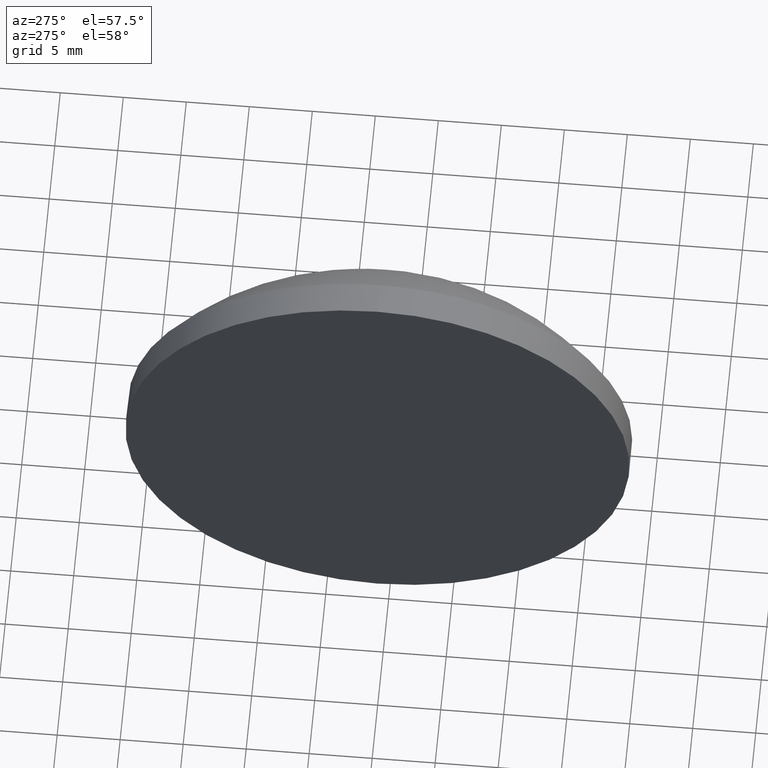
[diagram: clean part render]
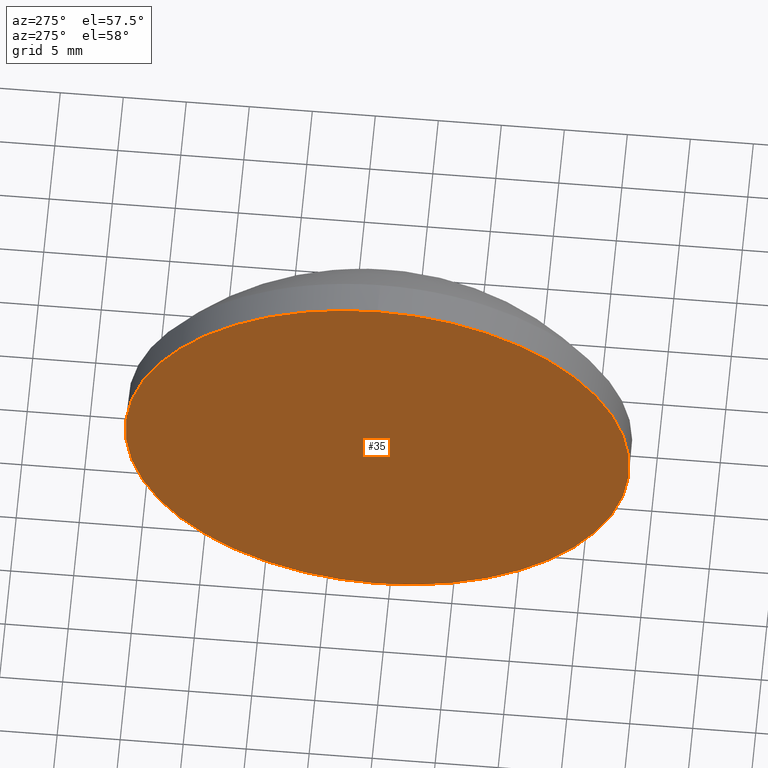
[diagram: same view with one face highlighted and labeled with its STEP entity id]
A machine part, auxiliary view. The second image highlights one B-rep face of the part: STEP entity #35.
In plain terms, the highlighted planar face has unit normal (1, 0, 0).
Its self-contained STEP definition (entity closure, byte-faithful):
#1 = PLANE ( 'NONE',  #162 ) ;
#18 = DIRECTION ( 'NONE',  ( 0.0000000000000000000, 0.0000000000000000000, 1.000000000000000000 ) ) ;
#22 = EDGE_CURVE ( 'NONE', #151, #144, #122, .T. ) ;
#35 = ADVANCED_FACE ( 'NONE', ( #42 ), #1, .F. ) ;
#36 = CARTESIAN_POINT ( 'NONE',  ( 440.7977319271096800, 15.96846071978552600, 19.99999999999999600 ) ) ;
#39 = ORIENTED_EDGE ( 'NONE', *, *, #83, .T. ) ;
#42 = FACE_OUTER_BOUND ( 'NONE', #172, .T. ) ;
#44 = CARTESIAN_POINT ( 'NONE',  ( 440.7977319271096800, 15.96846071978552600, 0.0000000000000000000 ) ) ;
#45 = CARTESIAN_POINT ( 'NONE',  ( 440.7977319271096800, 15.96846071978552600, 0.0000000000000000000 ) ) ;
#49 = AXIS2_PLACEMENT_3D ( 'NONE', #45, #62, #18 ) ;
#58 = ORIENTED_EDGE ( 'NONE', *, *, #22, .T. ) ;
#62 = DIRECTION ( 'NONE',  ( -1.000000000000000000, -0.0000000000000000000, -0.0000000000000000000 ) ) ;
#83 = EDGE_CURVE ( 'NONE', #144, #151, #164, .T. ) ;
#86 = DIRECTION ( 'NONE',  ( 0.0000000000000000000, 0.0000000000000000000, 1.000000000000000000 ) ) ;
#100 = AXIS2_PLACEMENT_3D ( 'NONE', #145, #160, #86 ) ;
#101 = DIRECTION ( 'NONE',  ( 1.000000000000000000, 0.0000000000000000000, 0.0000000000000000000 ) ) ;
#105 = DIRECTION ( 'NONE',  ( 0.0000000000000000000, 0.0000000000000000000, -1.000000000000000000 ) ) ;
#122 = CIRCLE ( 'NONE', #100, 19.99999999999999600 ) ;
#144 = VERTEX_POINT ( 'NONE', #36 ) ;
#145 = CARTESIAN_POINT ( 'NONE',  ( 440.7977319271096800, 15.96846071978552600, 0.0000000000000000000 ) ) ;
#151 = VERTEX_POINT ( 'NONE', #181 ) ;
#160 = DIRECTION ( 'NONE',  ( -1.000000000000000000, -0.0000000000000000000, -0.0000000000000000000 ) ) ;
#162 = AXIS2_PLACEMENT_3D ( 'NONE', #44, #101, #105 ) ;
#164 = CIRCLE ( 'NONE', #49, 19.99999999999999600 ) ;
#172 = EDGE_LOOP ( 'NONE', ( #39, #58 ) ) ;
#181 = CARTESIAN_POINT ( 'NONE',  ( 440.7977319271096800, 15.96846071978552900, -19.99999999999999600 ) ) ;